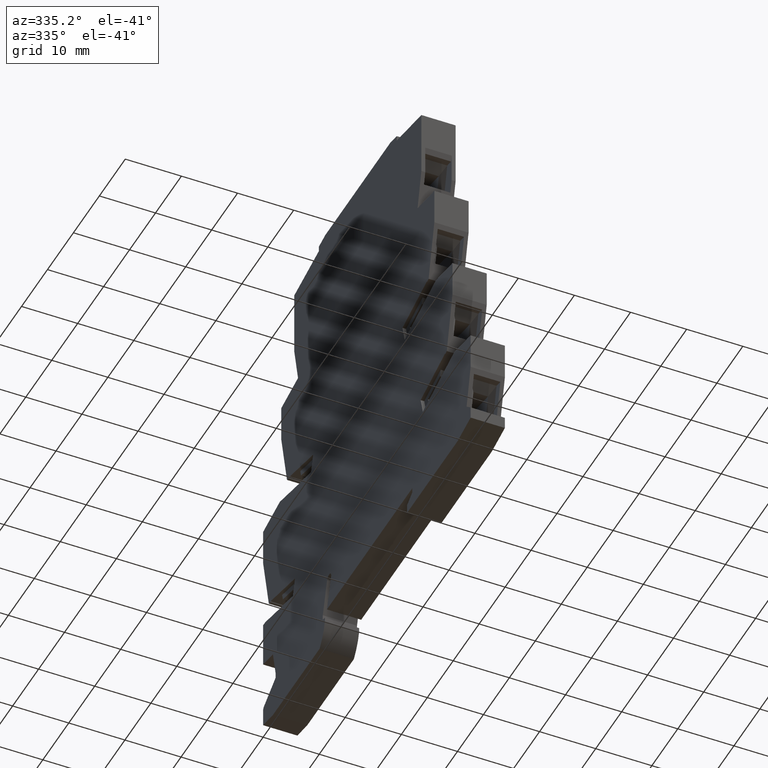
[diagram: clean part render]
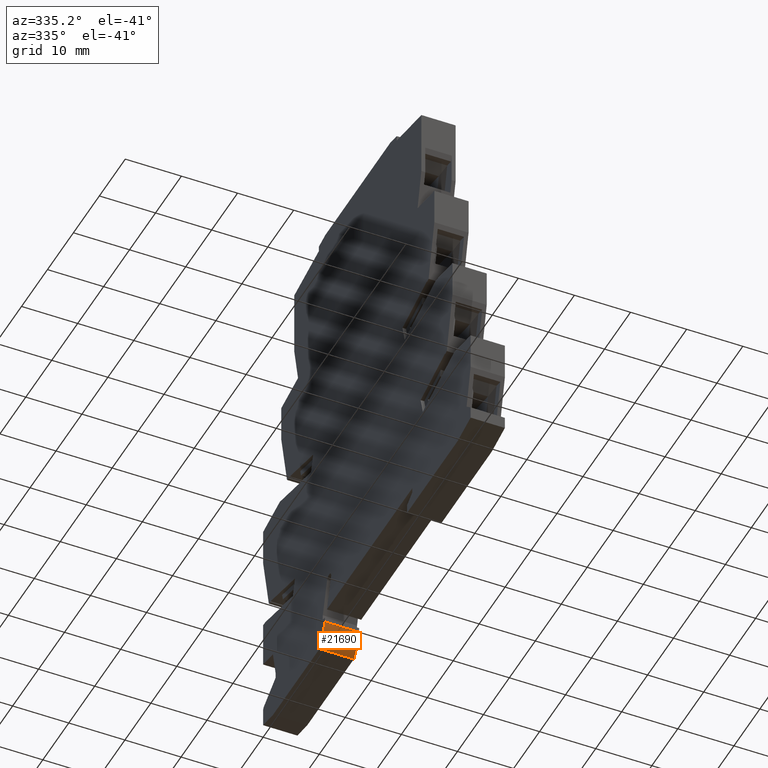
[diagram: same view with one face highlighted and labeled with its STEP entity id]
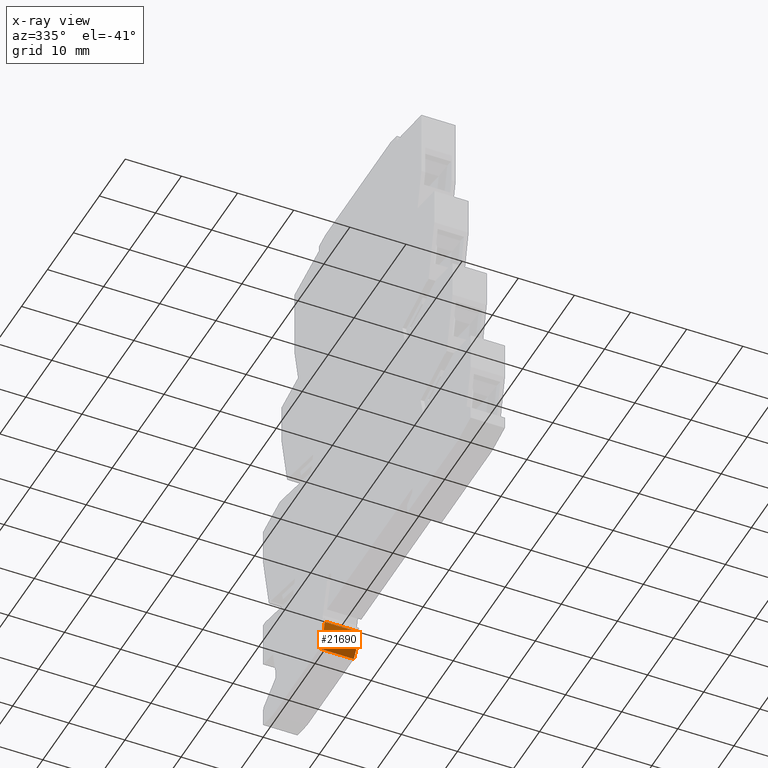
[diagram: x-ray of the same camera — body ghosted, the highlighted face saturated]
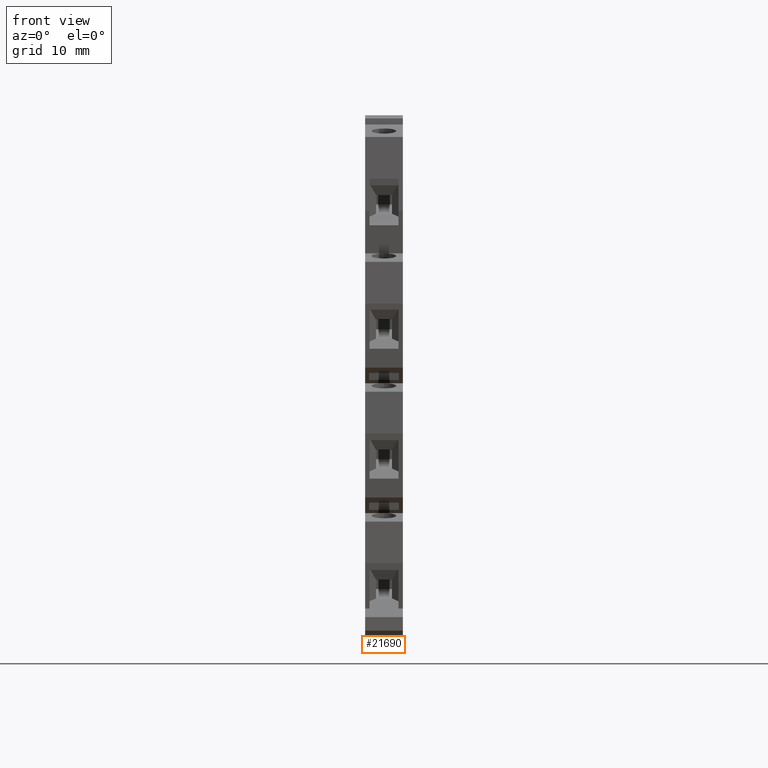
[diagram: same view with one face highlighted and labeled with its STEP entity id]
A machine part, auxiliary view. The second image highlights one B-rep face of the part: STEP entity #21690.
The next image is the same camera in x-ray: the body ghosted, the highlighted face saturated — about 0% of this face is hidden behind the body in this view.
A second angle (front view) of the same face is appended — the face is thin or edge-on in the first view.
In plain terms, the highlighted cylindrical surface (partial cylindrical patch) has radius 9.5 mm, axis along (-1, -0, -0).
Its self-contained STEP definition (entity closure, byte-faithful):
#4480=CARTESIAN_POINT('',(8.59895067098254,8.59407599993609,
-6.10000000000323));
#4490=VERTEX_POINT('',#4480);
#4520=CARTESIAN_POINT('',(17.8989506709827,10.533147942902,
-6.1000000000075));
#4530=DIRECTION('',(-1.31707713815764E-15,4.99765413870018E-16,-1.));
#4540=DIRECTION('',(-1.,1.06602284719999E-13,1.3170771381577E-15));
#4550=AXIS2_PLACEMENT_3D('',#4520,#4530,#4540);
#4560=CIRCLE('',#4550,9.49999999999998);
#4570=CARTESIAN_POINT('',(10.6160940885687,4.43314794290277,
-6.10000000000324));
#4580=VERTEX_POINT('',#4570);
#4590=EDGE_CURVE('',#4580,#4490,#4560,.T.);
#10740=CARTESIAN_POINT('',(10.6160940885688,4.43314794290277,
-3.23652216138726E-12));
#10750=VERTEX_POINT('',#10740);
#10780=CARTESIAN_POINT('',(17.8989506709827,10.5331479429019,
-3.04645197957143E-12));
#10790=DIRECTION('',(-1.31707713815764E-15,4.99765413870018E-16,-1.));
#10800=DIRECTION('',(-1.,1.06602284719999E-13,1.3170771381577E-15));
#10810=AXIS2_PLACEMENT_3D('',#10780,#10790,#10800);
#10820=CIRCLE('',#10810,9.49999999999998);
#10830=CARTESIAN_POINT('',(8.59895067098255,8.59407599993609,
-3.23296944770846E-12));
#10840=VERTEX_POINT('',#10830);
#10850=EDGE_CURVE('',#10750,#10840,#10820,.T.);
#21350=CARTESIAN_POINT('',(10.6160940885687,4.43314794290278,
-13.9000000000029));
#21360=DIRECTION('',(1.31707713815764E-15,-4.99765413870018E-16,1.));
#21370=VECTOR('',#21360,1.);
#21380=LINE('',#21350,#21370);
#21390=EDGE_CURVE('',#4580,#10750,#21380,.T.);
#21530=CARTESIAN_POINT('',(17.8989506709827,10.533147942902,
-13.9000000000029));
#21540=DIRECTION('',(-1.31707713815764E-15,4.99765413870018E-16,-1.));
#21550=DIRECTION('',(-1.,1.06602284719999E-13,1.3170771381577E-15));
#21560=AXIS2_PLACEMENT_3D('',#21530,#21540,#21550);
#21570=CYLINDRICAL_SURFACE('',#21560,9.49999999999998);
#21580=ORIENTED_EDGE('',*,*,#4590,.F.);
#21590=CARTESIAN_POINT('',(8.59895067098254,8.59407599993609,
-13.9000000000029));
#21600=DIRECTION('',(1.31707713815764E-15,-4.99765413870018E-16,1.));
#21610=VECTOR('',#21600,1.);
#21620=LINE('',#21590,#21610);
#21630=EDGE_CURVE('',#4490,#10840,#21620,.T.);
#21640=ORIENTED_EDGE('',*,*,#21630,.F.);
#21650=ORIENTED_EDGE('',*,*,#10850,.T.);
#21660=ORIENTED_EDGE('',*,*,#21390,.T.);
#21670=EDGE_LOOP('',(#21660,#21650,#21640,#21580));
#21680=FACE_OUTER_BOUND('',#21670,.T.);
#21690=ADVANCED_FACE('',(#21680),#21570,.T.);